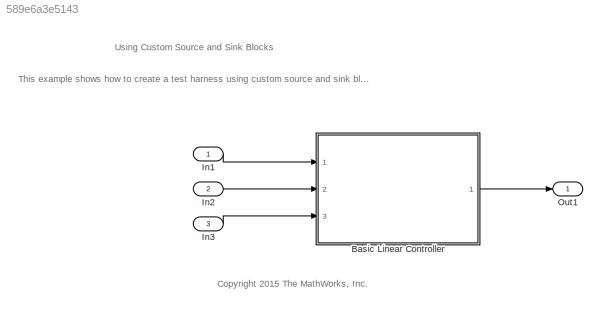
MODEL slx_589e6a3e5143
KIND model
CONFIG AbsTol = 1e-6
CONFIG FixedStep = 0.01
CONFIG MaxStep = auto
CONFIG MinStep = auto
CONFIG RelTol = 1e-5
CONFIG SampleTimeConstraint = Unconstrained
CONFIG Solver = FixedStepDiscrete
CONFIG SolverMode = SingleTasking
CONFIG SolverName = FixedStepDiscrete
CONFIG StartTime = 0.0
CONFIG StopTime = 10
WORKSPACE source: MAT-file member
WORKSPACE PressEst = [0.806253176324 0.553142316929 0.37151500209 0.277667903103 0.220198954207 0.181288665766 0.153200000489 0.115431020872 0.0913067476324 0.0746519188607 0.0625231108324 0.0533383634277 ... (306 elements, 18x17)]
WORKSPACE PressVect = [0.05 0.1 0.15 0.2 0.25 0.3 0.35 0.4 0.45 0.5 0.55 0.6 ... (19 elements, 1x19)]
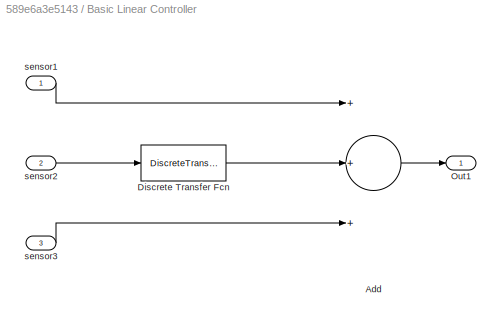
BLOCK [SubSystem] Basic Linear Controller
  Ports = [3, 1]
  RequestExecContextInheritance = off
  Variant = off
  VariantControl = VSS_LINEAR_CONTROLLER
BLOCK [Sum] Basic Linear Controller/Add
  InputSameDT = off
  Inputs = +++
  OutDataTypeStr = Inherit: Inherit via internal rule
  Ports = [3, 1]
  SaturateOnIntegerOverflow = off
BLOCK [DiscreteTransferFcn] Basic Linear Controller/Discrete Transfer Fcn
  Denominator = [1 .09 0.5]
  InputPortMap = u0
  Numerator = [1 .7]
  Ports = [1, 1]
  SampleTime = .01
BLOCK [Outport] Basic Linear Controller/Out1
  IconDisplay = Port number
BLOCK [Inport] Basic Linear Controller/sensor1
  IconDisplay = Port number
BLOCK [Inport] Basic Linear Controller/sensor2
  IconDisplay = Port number
  Port = 2
BLOCK [Inport] Basic Linear Controller/sensor3
  IconDisplay = Port number
  Port = 3
BLOCK [Inport] In1
  IconDisplay = Port number
  OutDataTypeStr = double
  PortDimensions = 1
  SamplingMode = Sample based
  SignalType = real
  VarSizeSig = No
BLOCK [Inport] In2
  IconDisplay = Port number
  OutDataTypeStr = double
  Port = 2
  PortDimensions = 1
  SamplingMode = Sample based
  SignalType = real
  VarSizeSig = No
BLOCK [Inport] In3
  IconDisplay = Port number
  OutDataTypeStr = double
  Port = 3
  PortDimensions = 1
  SamplingMode = Sample based
  SignalType = real
  VarSizeSig = No
BLOCK [Outport] Out1
  IconDisplay = Port number
ANNOTATION (root): <copyright redacted>
ANNOTATION (root): This example shows how to create a test harness using custom source and sink blocks.
ANNOTATION (root): Using Custom Source and Sink Blocks
LINE Basic Linear Controller/Add:1 -> Basic Linear Controller/Out1:1
LINE Basic Linear Controller/Discrete Transfer Fcn:1 -> Basic Linear Controller/Add:2
LINE Basic Linear Controller/sensor1:1 -> Basic Linear Controller/Add:1
LINE Basic Linear Controller/sensor2:1 -> Basic Linear Controller/Discrete Transfer Fcn:1
LINE Basic Linear Controller/sensor3:1 -> Basic Linear Controller/Add:3
LINE Basic Linear Controller:1 -> Out1:1
LINE In1:1 -> Basic Linear Controller:1
LINE In2:1 -> Basic Linear Controller:2
LINE In3:1 -> Basic Linear Controller:3
